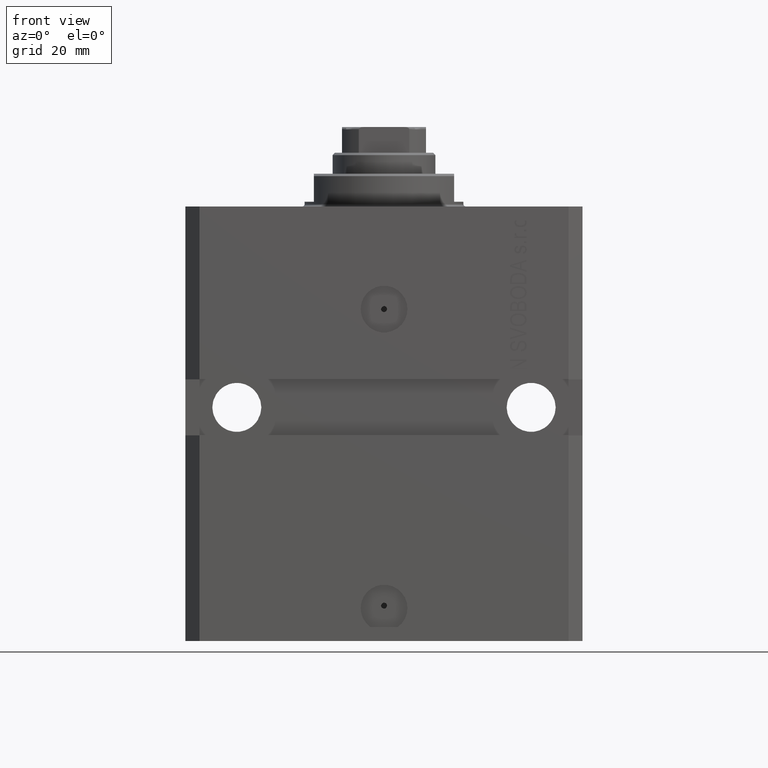
[diagram: clean part render]
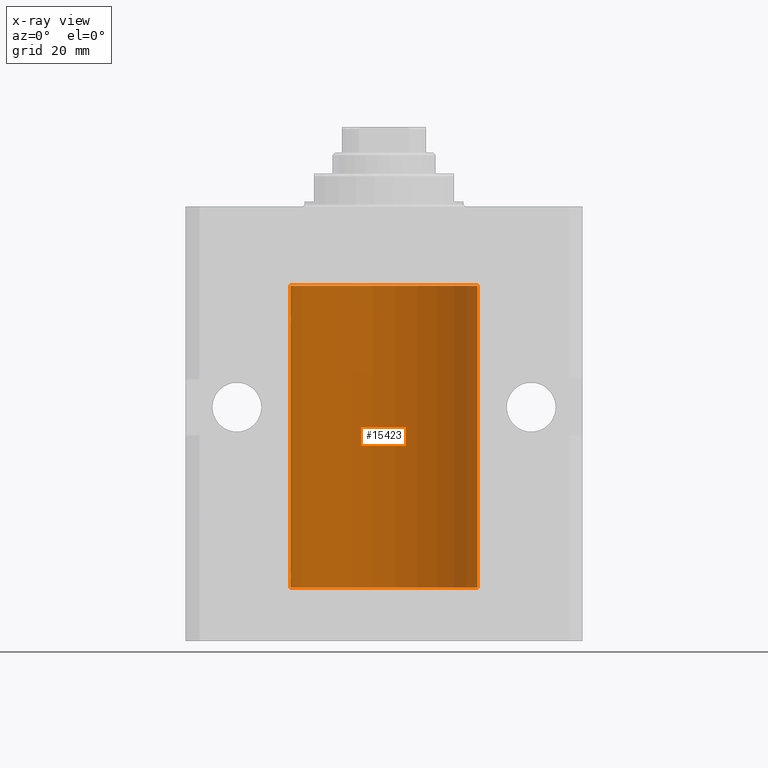
[diagram: x-ray — body ghosted, one internal face saturated and labeled with its STEP entity id]
A machine part, front view, then the same camera in x-ray: the body is ghosted and one INTERNAL B-rep face — a face not visible from any outside direction — is saturated and labeled: STEP entity #15423.
In plain terms, the highlighted cylindrical surface (partial cylindrical patch) has radius 20 mm, axis along (0, 0, 1).
Its self-contained STEP definition (entity closure, byte-faithful):
#103 = CARTESIAN_POINT ( 'NONE',  ( -19.99256581701871838, 0.5573276956901996870, -78.67348565770949165 ) ) ;
#424 = CARTESIAN_POINT ( 'NONE',  ( -19.99023380173166231, 0.6249420416828462832, -23.83670793056396064 ) ) ;
#1336 = CARTESIAN_POINT ( 'NONE',  ( 20.00000000000000000, 0.000000000000000000, -17.00000000000000000 ) ) ;
#1916 = EDGE_CURVE ( 'NONE', #27117, #41830, #32016, .T. ) ;
#4284 = CARTESIAN_POINT ( 'NONE',  ( -20.00000000000000000, 0.1631688615953320320, -24.62499999999985434 ) ) ;
#4997 = DIRECTION ( 'NONE',  ( -0.000000000000000000, -0.000000000000000000, 1.000000000000000000 ) ) ;
#4999 = CARTESIAN_POINT ( 'NONE',  ( -20.00000000000010303, 3.580159278407742946E-13, -24.62500000000332889 ) ) ;
#5494 = CARTESIAN_POINT ( 'NONE',  ( 20.00000000000000000, 0.000000000000000000, -81.59999999999999432 ) ) ;
#5962 = CARTESIAN_POINT ( 'NONE',  ( -19.99766197842594551, 0.3150331617867603295, -78.45402070102504410 ) ) ;
#6037 = CARTESIAN_POINT ( 'NONE',  ( 0.000000000000000000, 0.000000000000000000, -81.59999999999999432 ) ) ;
#6516 = FACE_OUTER_BOUND ( 'NONE', #45448, .T. ) ;
#7811 = AXIS2_PLACEMENT_3D ( 'NONE', #46618, #38709, #27639 ) ;
#7894 = CARTESIAN_POINT ( 'NONE',  ( -20.00000000000000000, -2.867584836844214272E-15, -23.37500000000000000 ) ) ;
#7907 = AXIS2_PLACEMENT_3D ( 'NONE', #16094, #44963, #35098 ) ;
#8255 = ORIENTED_EDGE ( 'NONE', *, *, #29550, .F. ) ;
#8398 = LINE ( 'NONE', #46561, #39452 ) ;
#8565 = CIRCLE ( 'NONE', #7811, 20.00000000000000000 ) ;
#8607 = CARTESIAN_POINT ( 'NONE',  ( -19.99023018003212471, 0.6250578794725500931, -24.16284809704970371 ) ) ;
#9258 = VECTOR ( 'NONE', #4997, 1000.000000000000000 ) ;
#9565 = CARTESIAN_POINT ( 'NONE',  ( -19.99023380173166231, 0.6249420416828449509, -78.83670793056396064 ) ) ;
#9758 = VERTEX_POINT ( 'NONE', #19798 ) ;
#10017 = ORIENTED_EDGE ( 'NONE', *, *, #39269, .T. ) ;
#10045 = CARTESIAN_POINT ( 'NONE',  ( -19.99638934703457238, 0.3843678041337651452, -78.50046362978099523 ) ) ;
#10947 = CARTESIAN_POINT ( 'NONE',  ( -20.00000000000010303, 3.580159278407742946E-13, -24.62500000000332889 ) ) ;
#11744 = CARTESIAN_POINT ( 'NONE',  ( -19.99253506710754991, 0.5587120480776751608, -24.32511620830248589 ) ) ;
#13769 = EDGE_CURVE ( 'NONE', #42469, #41868, #33883, .T. ) ;
#14766 = VERTEX_POINT ( 'NONE', #40378 ) ;
#15338 = CARTESIAN_POINT ( 'NONE',  ( -19.99766197842594906, 0.3150331617867667688, -23.45402070102505476 ) ) ;
#15423 = ADVANCED_FACE ( 'NONE', ( #6516 ), #20948, .F. ) ;
#15815 = CARTESIAN_POINT ( 'NONE',  ( -19.99638934703457593, 0.3843678041337688644, -23.50046362978100944 ) ) ;
#16094 = CARTESIAN_POINT ( 'NONE',  ( 0.000000000000000000, 0.000000000000000000, -81.59999999999999432 ) ) ;
#16099 = EDGE_CURVE ( 'NONE', #9758, #38929, #16265, .T. ) ;
#16265 = LINE ( 'NONE', #23960, #36259 ) ;
#16385 = B_SPLINE_CURVE_WITH_KNOTS ( 'NONE', 3,
 ( #7894, #44923, #26650, #15338, #15815, #30255, #424, #8607, #11744, #30493, #4284, #4999 ),
 .UNSPECIFIED., .F., .F.,
 ( 4, 2, 2, 2, 2, 4 ),
 ( 5.848927291235706941E-19, 0.0002442693137305304075, 0.0004885386274610601645, 0.0009770772549221123059, 0.001465615882383164339, 0.001954154509844215938 ),
 .UNSPECIFIED. ) ;
#17017 = CARTESIAN_POINT ( 'NONE',  ( -19.99253506710754991, 0.5587120480776742726, -79.32511620830248944 ) ) ;
#17114 = ORIENTED_EDGE ( 'NONE', *, *, #1916, .T. ) ;
#19798 = CARTESIAN_POINT ( 'NONE',  ( -20.00000000000000000, -2.867584836844214272E-15, -23.37500000000000000 ) ) ;
#20874 = CARTESIAN_POINT ( 'NONE',  ( -20.00000000000000355, 0.1631688615953343080, -79.62499999999984368 ) ) ;
#20948 = CYLINDRICAL_SURFACE ( 'NONE', #29273, 20.00000000000000000 ) ;
#23960 = CARTESIAN_POINT ( 'NONE',  ( -20.00000000000000000, 2.449293598294706513E-15, -81.59999999999999432 ) ) ;
#24062 = ORIENTED_EDGE ( 'NONE', *, *, #37004, .T. ) ;
#25254 = ORIENTED_EDGE ( 'NONE', *, *, #13769, .T. ) ;
#25827 = ORIENTED_EDGE ( 'NONE', *, *, #16099, .F. ) ;
#26650 = CARTESIAN_POINT ( 'NONE',  ( -19.99947377218718714, 0.1636439183262877461, -23.39126364004656011 ) ) ;
#27117 = VERTEX_POINT ( 'NONE', #45886 ) ;
#27639 = DIRECTION ( 'NONE',  ( 1.000000000000000000, 0.000000000000000000, 0.000000000000000000 ) ) ;
#27861 = CARTESIAN_POINT ( 'NONE',  ( -20.00000000000000000, -1.124177324826063808E-14, -78.37500000000000000 ) ) ;
#28677 = CIRCLE ( 'NONE', #7907, 20.00000000000000000 ) ;
#29273 = AXIS2_PLACEMENT_3D ( 'NONE', #6037, #35388, #35633 ) ;
#29550 = EDGE_CURVE ( 'NONE', #27117, #31013, #32086, .T. ) ;
#30255 = CARTESIAN_POINT ( 'NONE',  ( -19.99256581701871482, 0.5573276956902001311, -23.67348565770948809 ) ) ;
#30493 = CARTESIAN_POINT ( 'NONE',  ( -19.99769349528941120, 0.3253804398728645242, -24.55855820727680339 ) ) ;
#31013 = VERTEX_POINT ( 'NONE', #10947 ) ;
#31214 = CARTESIAN_POINT ( 'NONE',  ( 20.00000000000000000, 0.000000000000000000, -81.59999999999999432 ) ) ;
#31788 = CARTESIAN_POINT ( 'NONE',  ( -20.00000000000000000, 2.449293598294706513E-15, -17.00000000000000000 ) ) ;
#32016 = B_SPLINE_CURVE_WITH_KNOTS ( 'NONE', 3,
 ( #27861, #40273, #46367, #5962, #10045, #103, #9565, #36677, #17017, #42757, #20874, #38921 ),
 .UNSPECIFIED., .F., .F.,
 ( 4, 2, 2, 2, 2, 4 ),
 ( 1.522880481566060999E-18, 0.0002442693137305179392, 0.0004885386274610343605, 0.0009770772549220966934, 0.001465615882383158918, 0.001954154509844221576 ),
 .UNSPECIFIED. ) ;
#32086 = LINE ( 'NONE', #42656, #44476 ) ;
#33883 = LINE ( 'NONE', #31214, #9258 ) ;
#35098 = DIRECTION ( 'NONE',  ( 1.000000000000000000, 0.000000000000000000, 0.000000000000000000 ) ) ;
#35388 = DIRECTION ( 'NONE',  ( -0.000000000000000000, -0.000000000000000000, 1.000000000000000000 ) ) ;
#35633 = DIRECTION ( 'NONE',  ( 1.000000000000000000, 0.000000000000000000, 0.000000000000000000 ) ) ;
#36259 = VECTOR ( 'NONE', #42485, 1000.000000000000000 ) ;
#36677 = CARTESIAN_POINT ( 'NONE',  ( -19.99023018003212471, 0.6250578794725522025, -79.16284809704971792 ) ) ;
#37004 = EDGE_CURVE ( 'NONE', #9758, #31013, #16385, .T. ) ;
#37278 = ORIENTED_EDGE ( 'NONE', *, *, #46065, .F. ) ;
#38709 = DIRECTION ( 'NONE',  ( 0.000000000000000000, 0.000000000000000000, 1.000000000000000000 ) ) ;
#38921 = CARTESIAN_POINT ( 'NONE',  ( -20.00000000000010303, 3.580159286679549072E-13, -79.62500000000332534 ) ) ;
#38929 = VERTEX_POINT ( 'NONE', #31788 ) ;
#39269 = EDGE_CURVE ( 'NONE', #41868, #38929, #8565, .T. ) ;
#39452 = VECTOR ( 'NONE', #42965, 1000.000000000000000 ) ;
#40273 = CARTESIAN_POINT ( 'NONE',  ( -19.99999999999999289, 0.08259581631026131909, -78.37499999999998579 ) ) ;
#40378 = CARTESIAN_POINT ( 'NONE',  ( -20.00000000000000000, 2.449293598294706513E-15, -81.59999999999999432 ) ) ;
#40797 = CARTESIAN_POINT ( 'NONE',  ( -20.00000000000010303, 3.580159286679549072E-13, -79.62500000000332534 ) ) ;
#41830 = VERTEX_POINT ( 'NONE', #40797 ) ;
#41868 = VERTEX_POINT ( 'NONE', #1336 ) ;
#42369 = ORIENTED_EDGE ( 'NONE', *, *, #43579, .F. ) ;
#42469 = VERTEX_POINT ( 'NONE', #5494 ) ;
#42485 = DIRECTION ( 'NONE',  ( -0.000000000000000000, -0.000000000000000000, 1.000000000000000000 ) ) ;
#42656 = CARTESIAN_POINT ( 'NONE',  ( -20.00000000000000000, 2.449293598294706513E-15, -81.59999999999999432 ) ) ;
#42757 = CARTESIAN_POINT ( 'NONE',  ( -19.99769349528941831, 0.3253804398728615266, -79.55855820727680339 ) ) ;
#42965 = DIRECTION ( 'NONE',  ( -0.000000000000000000, -0.000000000000000000, 1.000000000000000000 ) ) ;
#43579 = EDGE_CURVE ( 'NONE', #14766, #41830, #8398, .T. ) ;
#44476 = VECTOR ( 'NONE', #46986, 1000.000000000000000 ) ;
#44923 = CARTESIAN_POINT ( 'NONE',  ( -19.99999999999999645, 0.08259581631026780002, -23.37500000000000000 ) ) ;
#44963 = DIRECTION ( 'NONE',  ( 0.000000000000000000, 0.000000000000000000, 1.000000000000000000 ) ) ;
#45448 = EDGE_LOOP ( 'NONE', ( #42369, #37278, #25254, #10017, #25827, #24062, #8255, #17114 ) ) ;
#45886 = CARTESIAN_POINT ( 'NONE',  ( -20.00000000000000000, -1.124177324826063808E-14, -78.37500000000000000 ) ) ;
#46065 = EDGE_CURVE ( 'NONE', #42469, #14766, #28677, .T. ) ;
#46367 = CARTESIAN_POINT ( 'NONE',  ( -19.99947377218718003, 0.1636439183262797525, -78.39126364004653169 ) ) ;
#46561 = CARTESIAN_POINT ( 'NONE',  ( -20.00000000000000000, 2.449293598294706513E-15, -81.59999999999999432 ) ) ;
#46618 = CARTESIAN_POINT ( 'NONE',  ( 0.000000000000000000, 0.000000000000000000, -17.00000000000000000 ) ) ;
#46986 = DIRECTION ( 'NONE',  ( -0.000000000000000000, -0.000000000000000000, 1.000000000000000000 ) ) ;